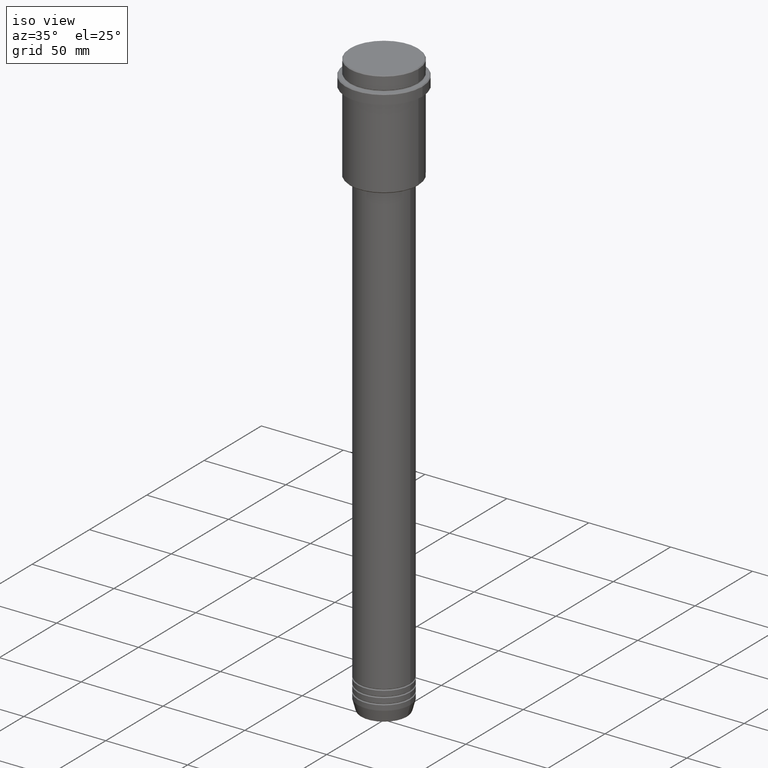
[diagram: clean part render]
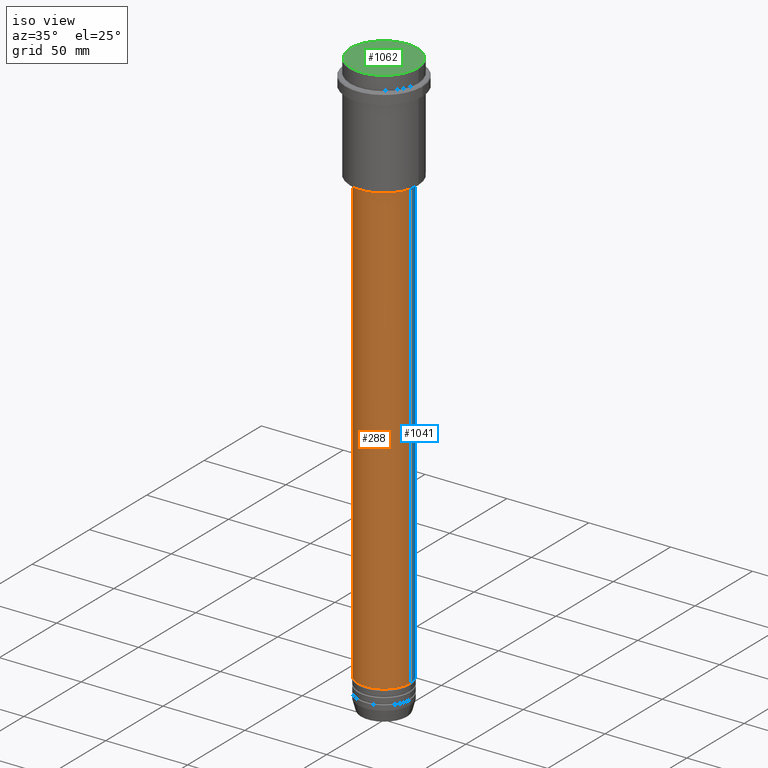
[diagram: same view with three faces highlighted in distinct colors, each labeled with its STEP entity id]
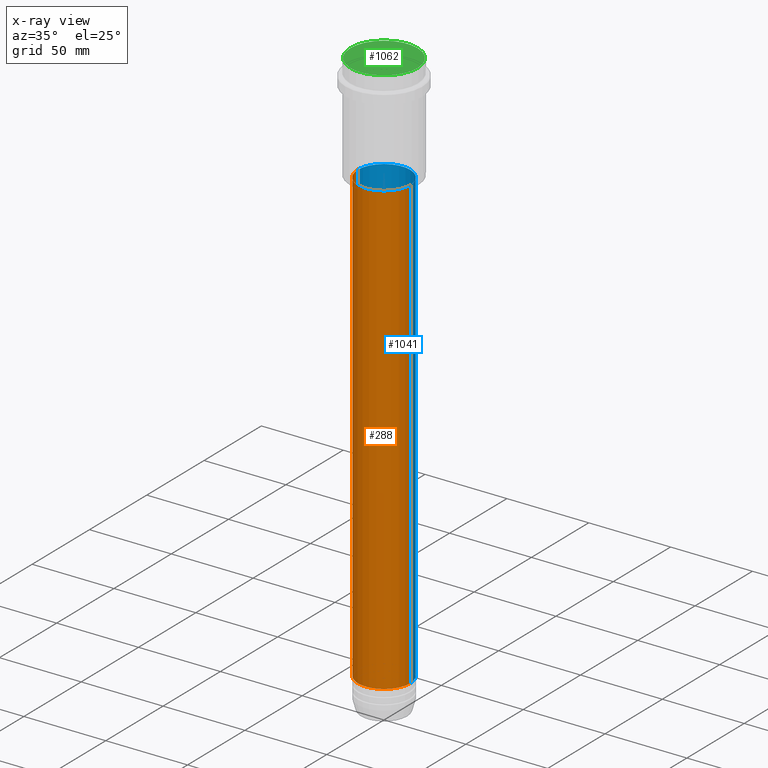
[diagram: x-ray of the same camera — body ghosted, the three highlighted faces saturated]
A machine part, iso view with three faces highlighted in distinct colors.
The next image is the same camera in x-ray (body ghosted, the three faces saturated) — at least one of them is partly hidden behind the body in this view.
Their STEP definitions:

[orange] entity #288 — the highlighted cylindrical surface (edge-blend (fillet) strip) has radius 16 mm, axis along (-0, -0, 1).
#70 = EDGE_CURVE ( 'NONE', #716, #1218, #761, .T. ) ;
#105 = EDGE_CURVE ( 'NONE', #323, #1218, #1081, .T. ) ;
#111 = CARTESIAN_POINT ( 'NONE',  ( 16.00000000000000000, 0.000000000000000000, 0.000000000000000000 ) ) ;
#113 = EDGE_CURVE ( 'NONE', #1411, #323, #905, .T. ) ;
#139 = CARTESIAN_POINT ( 'NONE',  ( -16.00000000000000000, 1.959434878635765131E-15, 0.000000000000000000 ) ) ;
#152 = CIRCLE ( 'NONE', #321, 16.00000000000000000 ) ;
#153 = VECTOR ( 'NONE', #372, 1000.000000000000000 ) ;
#174 = DIRECTION ( 'NONE',  ( 1.000000000000000000, 0.000000000000000000, 0.000000000000000000 ) ) ;
#288 = ADVANCED_FACE ( 'NONE', ( #396 ), #1156, .T. ) ;
#308 = CARTESIAN_POINT ( 'NONE',  ( 16.00000000000000355, 0.000000000000000000, -66.00000000000002842 ) ) ;
#321 = AXIS2_PLACEMENT_3D ( 'NONE', #867, #879, #976 ) ;
#323 = VERTEX_POINT ( 'NONE', #1145 ) ;
#372 = DIRECTION ( 'NONE',  ( -0.000000000000000000, -0.000000000000000000, 1.000000000000000000 ) ) ;
#396 = FACE_OUTER_BOUND ( 'NONE', #785, .T. ) ;
#449 = VECTOR ( 'NONE', #802, 1000.000000000000000 ) ;
#485 = ORIENTED_EDGE ( 'NONE', *, *, #113, .F. ) ;
#581 = CARTESIAN_POINT ( 'NONE',  ( 0.000000000000000000, 0.000000000000000000, -66.00000000000002842 ) ) ;
#593 = AXIS2_PLACEMENT_3D ( 'NONE', #581, #1134, #1251 ) ;
#716 = VERTEX_POINT ( 'NONE', #1393 ) ;
#728 = DIRECTION ( 'NONE',  ( -0.000000000000000000, -0.000000000000000000, 1.000000000000000000 ) ) ;
#761 = LINE ( 'NONE', #111, #153 ) ;
#763 = ORIENTED_EDGE ( 'NONE', *, *, #1265, .T. ) ;
#785 = EDGE_LOOP ( 'NONE', ( #485, #763, #1383, #1225 ) ) ;
#802 = DIRECTION ( 'NONE',  ( -0.000000000000000000, -0.000000000000000000, 1.000000000000000000 ) ) ;
#867 = CARTESIAN_POINT ( 'NONE',  ( 0.000000000000000000, 0.000000000000000000, -340.9999999999998863 ) ) ;
#879 = DIRECTION ( 'NONE',  ( -0.000000000000000000, -0.000000000000000000, 1.000000000000000000 ) ) ;
#905 = LINE ( 'NONE', #139, #449 ) ;
#976 = DIRECTION ( 'NONE',  ( 1.000000000000000000, 0.000000000000000000, 0.000000000000000000 ) ) ;
#1013 = CARTESIAN_POINT ( 'NONE',  ( -16.00000000000000000, 1.959434878635765131E-15, -340.9999999999998863 ) ) ;
#1054 = AXIS2_PLACEMENT_3D ( 'NONE', #1283, #728, #174 ) ;
#1081 = CIRCLE ( 'NONE', #593, 16.00000000000000355 ) ;
#1134 = DIRECTION ( 'NONE',  ( -0.000000000000000000, -0.000000000000000000, 1.000000000000000000 ) ) ;
#1145 = CARTESIAN_POINT ( 'NONE',  ( -16.00000000000000355, 1.959434878635765526E-15, -66.00000000000002842 ) ) ;
#1156 = CYLINDRICAL_SURFACE ( 'NONE', #1054, 16.00000000000000000 ) ;
#1218 = VERTEX_POINT ( 'NONE', #308 ) ;
#1225 = ORIENTED_EDGE ( 'NONE', *, *, #105, .F. ) ;
#1251 = DIRECTION ( 'NONE',  ( 1.000000000000000000, 0.000000000000000000, 0.000000000000000000 ) ) ;
#1265 = EDGE_CURVE ( 'NONE', #1411, #716, #152, .T. ) ;
#1283 = CARTESIAN_POINT ( 'NONE',  ( 0.000000000000000000, 0.000000000000000000, 0.000000000000000000 ) ) ;
#1383 = ORIENTED_EDGE ( 'NONE', *, *, #70, .T. ) ;
#1393 = CARTESIAN_POINT ( 'NONE',  ( 16.00000000000000000, 0.000000000000000000, -340.9999999999998863 ) ) ;
#1411 = VERTEX_POINT ( 'NONE', #1013 ) ;

[blue] entity #1041 — the highlighted cylindrical surface (edge-blend (fillet) strip) has radius 16 mm, axis along (-0, -0, 1).
#70 = EDGE_CURVE ( 'NONE', #716, #1218, #761, .T. ) ;
#111 = CARTESIAN_POINT ( 'NONE',  ( 16.00000000000000000, 0.000000000000000000, 0.000000000000000000 ) ) ;
#113 = EDGE_CURVE ( 'NONE', #1411, #323, #905, .T. ) ;
#139 = CARTESIAN_POINT ( 'NONE',  ( -16.00000000000000000, 1.959434878635765131E-15, 0.000000000000000000 ) ) ;
#153 = VECTOR ( 'NONE', #372, 1000.000000000000000 ) ;
#244 = DIRECTION ( 'NONE',  ( -0.000000000000000000, -0.000000000000000000, 1.000000000000000000 ) ) ;
#263 = EDGE_CURVE ( 'NONE', #1218, #323, #680, .T. ) ;
#278 = ORIENTED_EDGE ( 'NONE', *, *, #70, .F. ) ;
#280 = ORIENTED_EDGE ( 'NONE', *, *, #263, .F. ) ;
#308 = CARTESIAN_POINT ( 'NONE',  ( 16.00000000000000355, 0.000000000000000000, -66.00000000000002842 ) ) ;
#323 = VERTEX_POINT ( 'NONE', #1145 ) ;
#372 = DIRECTION ( 'NONE',  ( -0.000000000000000000, -0.000000000000000000, 1.000000000000000000 ) ) ;
#379 = AXIS2_PLACEMENT_3D ( 'NONE', #838, #947, #1387 ) ;
#449 = VECTOR ( 'NONE', #802, 1000.000000000000000 ) ;
#457 = CYLINDRICAL_SURFACE ( 'NONE', #1171, 16.00000000000000000 ) ;
#466 = AXIS2_PLACEMENT_3D ( 'NONE', #922, #1357, #1327 ) ;
#680 = CIRCLE ( 'NONE', #379, 16.00000000000000355 ) ;
#691 = CARTESIAN_POINT ( 'NONE',  ( 0.000000000000000000, 0.000000000000000000, 0.000000000000000000 ) ) ;
#699 = ORIENTED_EDGE ( 'NONE', *, *, #113, .T. ) ;
#716 = VERTEX_POINT ( 'NONE', #1393 ) ;
#761 = LINE ( 'NONE', #111, #153 ) ;
#802 = DIRECTION ( 'NONE',  ( -0.000000000000000000, -0.000000000000000000, 1.000000000000000000 ) ) ;
#838 = CARTESIAN_POINT ( 'NONE',  ( 0.000000000000000000, 0.000000000000000000, -66.00000000000002842 ) ) ;
#905 = LINE ( 'NONE', #139, #449 ) ;
#917 = FACE_OUTER_BOUND ( 'NONE', #1331, .T. ) ;
#922 = CARTESIAN_POINT ( 'NONE',  ( 0.000000000000000000, 0.000000000000000000, -340.9999999999998863 ) ) ;
#947 = DIRECTION ( 'NONE',  ( -0.000000000000000000, -0.000000000000000000, 1.000000000000000000 ) ) ;
#1013 = CARTESIAN_POINT ( 'NONE',  ( -16.00000000000000000, 1.959434878635765131E-15, -340.9999999999998863 ) ) ;
#1019 = DIRECTION ( 'NONE',  ( 1.000000000000000000, 0.000000000000000000, 0.000000000000000000 ) ) ;
#1020 = EDGE_CURVE ( 'NONE', #716, #1411, #1037, .T. ) ;
#1037 = CIRCLE ( 'NONE', #466, 16.00000000000000000 ) ;
#1041 = ADVANCED_FACE ( 'NONE', ( #917 ), #457, .T. ) ;
#1071 = ORIENTED_EDGE ( 'NONE', *, *, #1020, .T. ) ;
#1145 = CARTESIAN_POINT ( 'NONE',  ( -16.00000000000000355, 1.959434878635765526E-15, -66.00000000000002842 ) ) ;
#1171 = AXIS2_PLACEMENT_3D ( 'NONE', #691, #244, #1019 ) ;
#1218 = VERTEX_POINT ( 'NONE', #308 ) ;
#1327 = DIRECTION ( 'NONE',  ( 1.000000000000000000, 0.000000000000000000, 0.000000000000000000 ) ) ;
#1331 = EDGE_LOOP ( 'NONE', ( #1071, #699, #280, #278 ) ) ;
#1357 = DIRECTION ( 'NONE',  ( -0.000000000000000000, -0.000000000000000000, 1.000000000000000000 ) ) ;
#1387 = DIRECTION ( 'NONE',  ( 1.000000000000000000, 0.000000000000000000, 0.000000000000000000 ) ) ;
#1393 = CARTESIAN_POINT ( 'NONE',  ( 16.00000000000000000, 0.000000000000000000, -340.9999999999998863 ) ) ;
#1411 = VERTEX_POINT ( 'NONE', #1013 ) ;

[green] entity #1062 — the highlighted planar face has unit normal (0, -0, 1).
#4 = CARTESIAN_POINT ( 'NONE',  ( 0.000000000000000000, 0.000000000000000000, 0.000000000000000000 ) ) ;
#44 = DIRECTION ( 'NONE',  ( 1.000000000000000000, 0.000000000000000000, 0.000000000000000000 ) ) ;
#148 = PLANE ( 'NONE',  #496 ) ;
#193 = CARTESIAN_POINT ( 'NONE',  ( 0.000000000000000000, 0.000000000000000000, 0.000000000000000000 ) ) ;
#314 = DIRECTION ( 'NONE',  ( -0.000000000000000000, -0.000000000000000000, 1.000000000000000000 ) ) ;
#496 = AXIS2_PLACEMENT_3D ( 'NONE', #592, #789, #44 ) ;
#539 = CIRCLE ( 'NONE', #795, 20.50000000000007461 ) ;
#592 = CARTESIAN_POINT ( 'NONE',  ( 0.000000000000000000, 0.000000000000000000, 0.000000000000000000 ) ) ;
#628 = CARTESIAN_POINT ( 'NONE',  ( 20.50000000000007461, 2.541142108230762213E-15, 0.000000000000000000 ) ) ;
#676 = EDGE_LOOP ( 'NONE', ( #1398, #1317 ) ) ;
#678 = EDGE_CURVE ( 'NONE', #1320, #786, #539, .T. ) ;
#695 = FACE_OUTER_BOUND ( 'NONE', #676, .T. ) ;
#703 = CIRCLE ( 'NONE', #929, 20.50000000000007461 ) ;
#786 = VERTEX_POINT ( 'NONE', #628 ) ;
#789 = DIRECTION ( 'NONE',  ( 0.000000000000000000, -0.000000000000000000, 1.000000000000000000 ) ) ;
#794 = CARTESIAN_POINT ( 'NONE',  ( -20.50000000000007461, 0.000000000000000000, 0.000000000000000000 ) ) ;
#795 = AXIS2_PLACEMENT_3D ( 'NONE', #193, #314, #856 ) ;
#856 = DIRECTION ( 'NONE',  ( 1.000000000000000000, 0.000000000000000000, 0.000000000000000000 ) ) ;
#870 = DIRECTION ( 'NONE',  ( 1.000000000000000000, 0.000000000000000000, 0.000000000000000000 ) ) ;
#889 = DIRECTION ( 'NONE',  ( -0.000000000000000000, -0.000000000000000000, 1.000000000000000000 ) ) ;
#894 = EDGE_CURVE ( 'NONE', #786, #1320, #703, .T. ) ;
#929 = AXIS2_PLACEMENT_3D ( 'NONE', #4, #889, #870 ) ;
#1062 = ADVANCED_FACE ( 'NONE', ( #695 ), #148, .T. ) ;
#1317 = ORIENTED_EDGE ( 'NONE', *, *, #894, .T. ) ;
#1320 = VERTEX_POINT ( 'NONE', #794 ) ;
#1398 = ORIENTED_EDGE ( 'NONE', *, *, #678, .T. ) ;